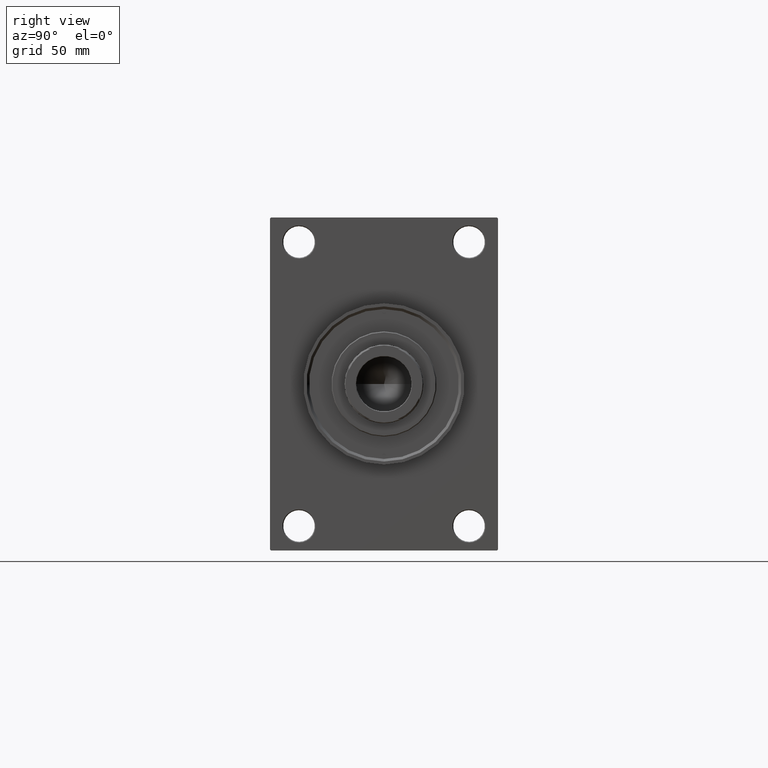
[diagram: clean part render]
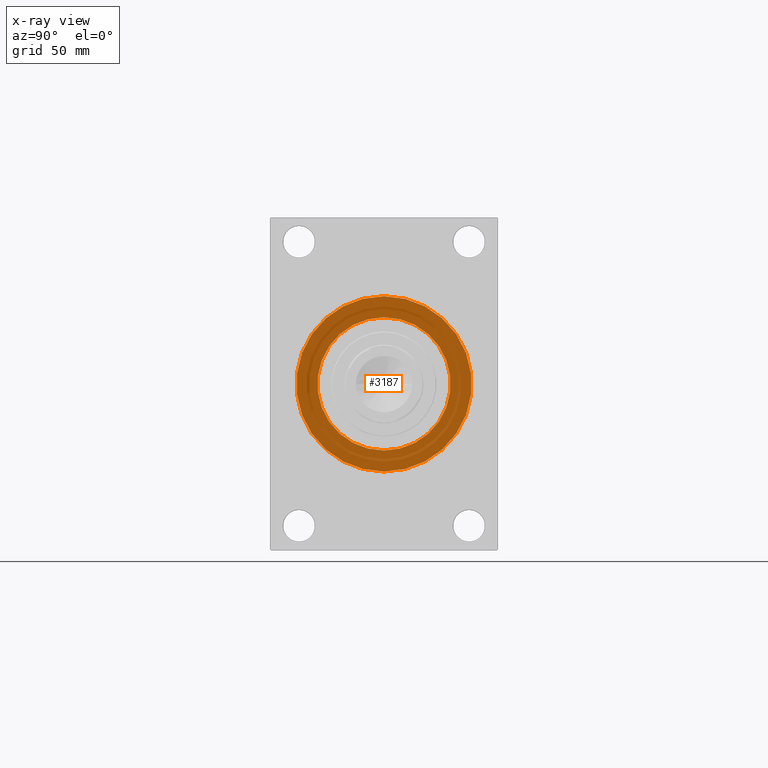
[diagram: x-ray — body ghosted, one internal face saturated and labeled with its STEP entity id]
A machine part, right view, then the same camera in x-ray: the body is ghosted and one INTERNAL B-rep face — a face not visible from any outside direction — is saturated and labeled: STEP entity #3187.
In plain terms, the highlighted planar face has unit normal (-1, 0, 0).
Its self-contained STEP definition (entity closure, byte-faithful):
#729 = AXIS2_PLACEMENT_3D ( 'NONE', #41788, #44702, #4038 ) ;
#2324 = AXIS2_PLACEMENT_3D ( 'NONE', #17006, #17909, #25390 ) ;
#2365 = EDGE_CURVE ( 'NONE', #15548, #23690, #21596, .T. ) ;
#3187 = ADVANCED_FACE ( 'NONE', ( #29028, #24255 ), #9271, .T. ) ;
#4038 = DIRECTION ( 'NONE',  ( 0.000000000000000000, 0.000000000000000000, 1.000000000000000000 ) ) ;
#4704 = CARTESIAN_POINT ( 'NONE',  ( 220.9999999999999716, -2.602085213965210642E-15, 0.000000000000000000 ) ) ;
#7083 = CIRCLE ( 'NONE', #27118, 50.00000000000000000 ) ;
#9271 = PLANE ( 'NONE',  #2324 ) ;
#11873 = CARTESIAN_POINT ( 'NONE',  ( 220.9999999999999432, 0.000000000000000000, -38.00000000000000000 ) ) ;
#14594 = DIRECTION ( 'NONE',  ( 0.000000000000000000, 0.000000000000000000, 1.000000000000000000 ) ) ;
#15351 = VERTEX_POINT ( 'NONE', #22287 ) ;
#15548 = VERTEX_POINT ( 'NONE', #11873 ) ;
#17006 = CARTESIAN_POINT ( 'NONE',  ( 220.9999999999999716, 0.000000000000000000, 0.000000000000000000 ) ) ;
#17909 = DIRECTION ( 'NONE',  ( -1.000000000000000000, 0.000000000000000000, -0.000000000000000000 ) ) ;
#18413 = ORIENTED_EDGE ( 'NONE', *, *, #22984, .F. ) ;
#18459 = DIRECTION ( 'NONE',  ( -1.000000000000000000, 0.000000000000000000, -0.000000000000000000 ) ) ;
#19451 = DIRECTION ( 'NONE',  ( 0.000000000000000000, 0.000000000000000000, -1.000000000000000000 ) ) ;
#19951 = AXIS2_PLACEMENT_3D ( 'NONE', #40753, #18459, #14594 ) ;
#19952 = EDGE_LOOP ( 'NONE', ( #44854, #18413 ) ) ;
#20040 = EDGE_CURVE ( 'NONE', #23690, #15548, #47795, .T. ) ;
#21596 = CIRCLE ( 'NONE', #729, 38.00000000000000000 ) ;
#22287 = CARTESIAN_POINT ( 'NONE',  ( 220.9999999999999716, 3.521148781771555838E-15, -50.00000000000000000 ) ) ;
#22859 = DIRECTION ( 'NONE',  ( 0.000000000000000000, 0.000000000000000000, -1.000000000000000000 ) ) ;
#22984 = EDGE_CURVE ( 'NONE', #15351, #27776, #40860, .T. ) ;
#23235 = ORIENTED_EDGE ( 'NONE', *, *, #2365, .F. ) ;
#23310 = DIRECTION ( 'NONE',  ( 1.000000000000000000, 0.000000000000000000, 0.000000000000000000 ) ) ;
#23690 = VERTEX_POINT ( 'NONE', #46722 ) ;
#24255 = FACE_OUTER_BOUND ( 'NONE', #19952, .T. ) ;
#25390 = DIRECTION ( 'NONE',  ( -0.000000000000000000, 0.000000000000000000, 1.000000000000000000 ) ) ;
#27118 = AXIS2_PLACEMENT_3D ( 'NONE', #4704, #23310, #19451 ) ;
#27157 = ORIENTED_EDGE ( 'NONE', *, *, #20040, .F. ) ;
#27197 = CARTESIAN_POINT ( 'NONE',  ( 220.9999999999999716, -2.602085213965210642E-15, 0.000000000000000000 ) ) ;
#27776 = VERTEX_POINT ( 'NONE', #46052 ) ;
#29028 = FACE_BOUND ( 'NONE', #38769, .T. ) ;
#30253 = EDGE_CURVE ( 'NONE', #27776, #15351, #7083, .T. ) ;
#31070 = DIRECTION ( 'NONE',  ( 1.000000000000000000, 0.000000000000000000, 0.000000000000000000 ) ) ;
#33082 = AXIS2_PLACEMENT_3D ( 'NONE', #27197, #31070, #22859 ) ;
#38769 = EDGE_LOOP ( 'NONE', ( #23235, #27157 ) ) ;
#40753 = CARTESIAN_POINT ( 'NONE',  ( 220.9999999999999432, 0.000000000000000000, 0.000000000000000000 ) ) ;
#40860 = CIRCLE ( 'NONE', #33082, 50.00000000000000000 ) ;
#41788 = CARTESIAN_POINT ( 'NONE',  ( 220.9999999999999432, 0.000000000000000000, 0.000000000000000000 ) ) ;
#44702 = DIRECTION ( 'NONE',  ( -1.000000000000000000, 0.000000000000000000, -0.000000000000000000 ) ) ;
#44854 = ORIENTED_EDGE ( 'NONE', *, *, #30253, .F. ) ;
#46052 = CARTESIAN_POINT ( 'NONE',  ( 220.9999999999999716, -2.602085213965210642E-15, 50.00000000000000000 ) ) ;
#46722 = CARTESIAN_POINT ( 'NONE',  ( 220.9999999999999432, 4.653657836759941941E-15, 38.00000000000000000 ) ) ;
#47795 = CIRCLE ( 'NONE', #19951, 38.00000000000000000 ) ;